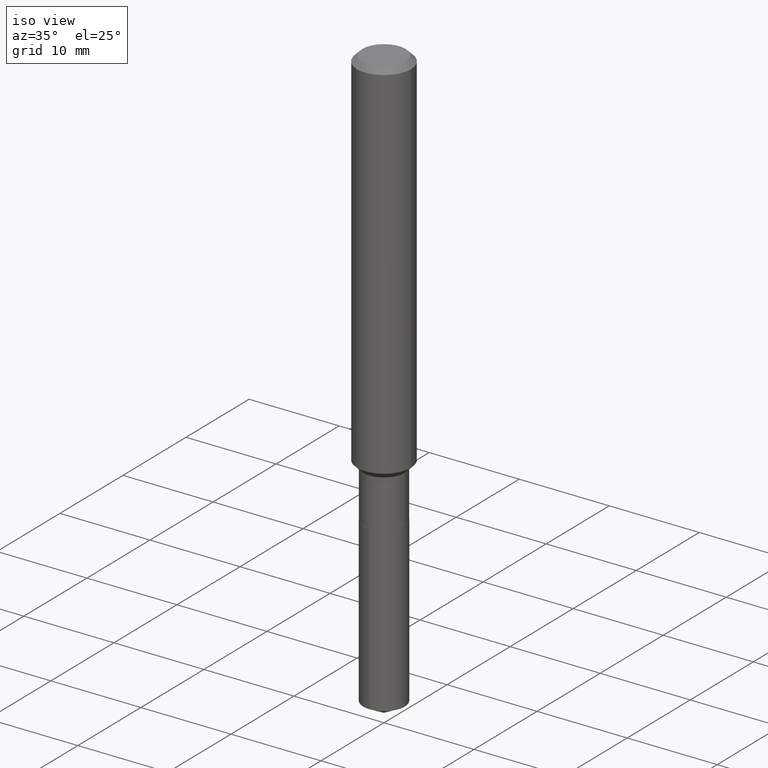
[diagram: clean part render]
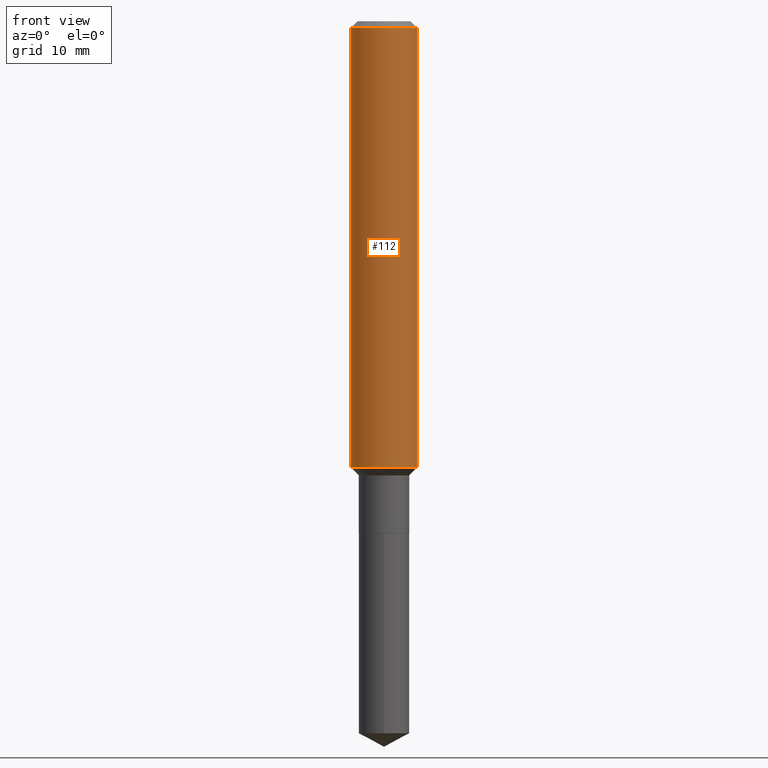
[diagram: tour spotlight — one face highlighted and labeled with its STEP entity id]
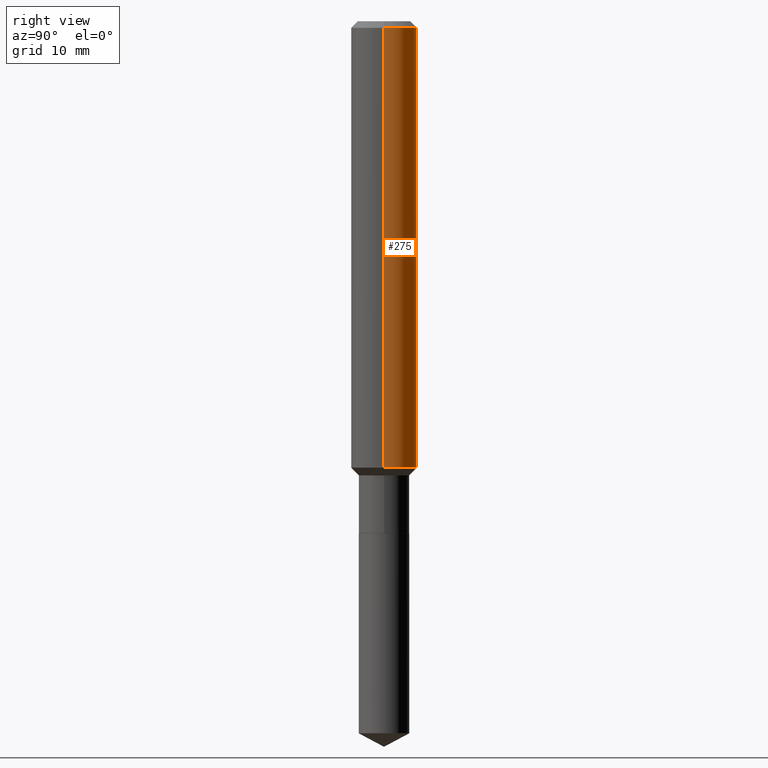
[diagram: tour spotlight — one face highlighted and labeled with its STEP entity id]
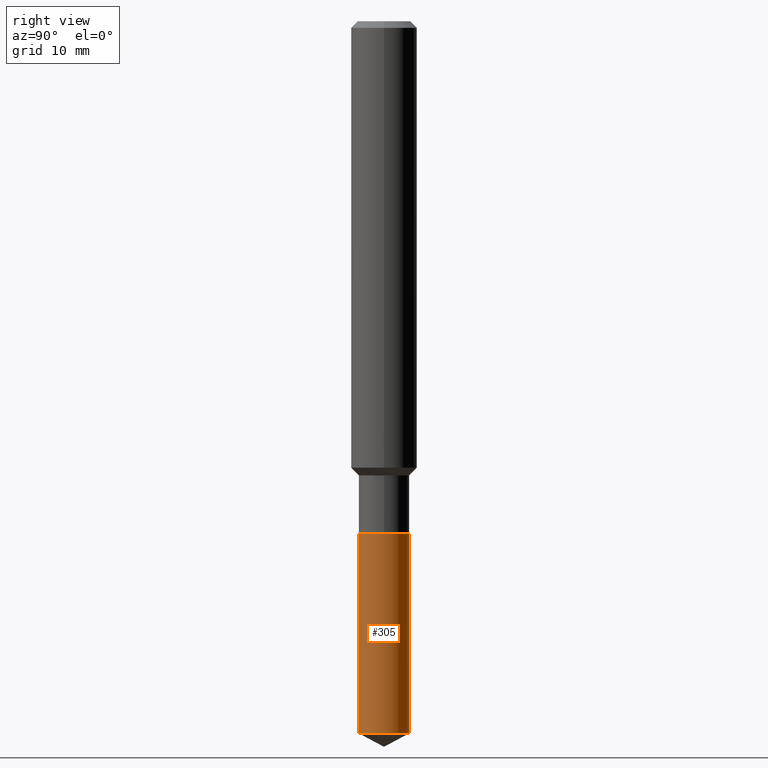
[diagram: tour spotlight — one face highlighted and labeled with its STEP entity id]
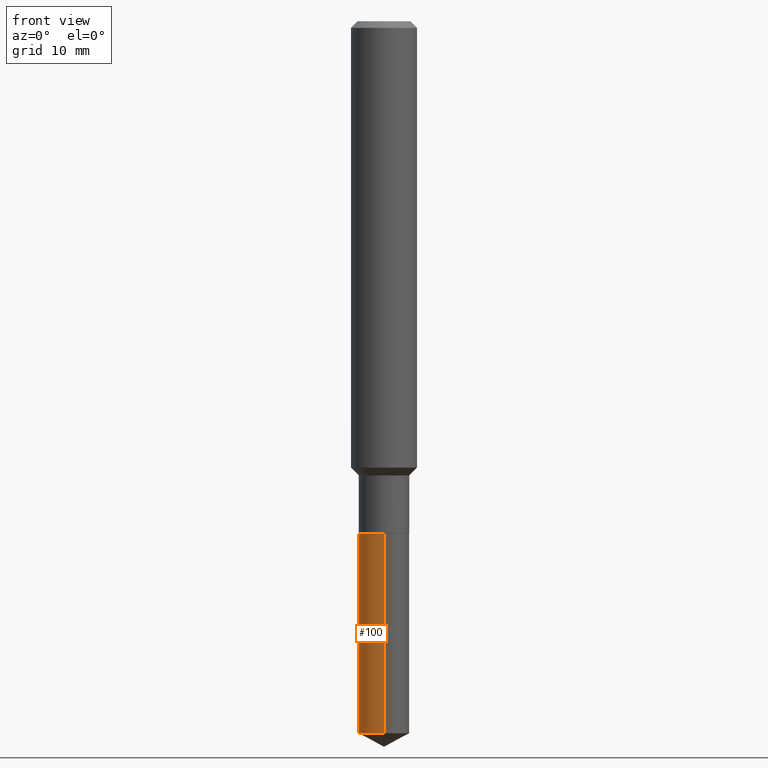
[diagram: tour spotlight — one face highlighted and labeled with its STEP entity id]
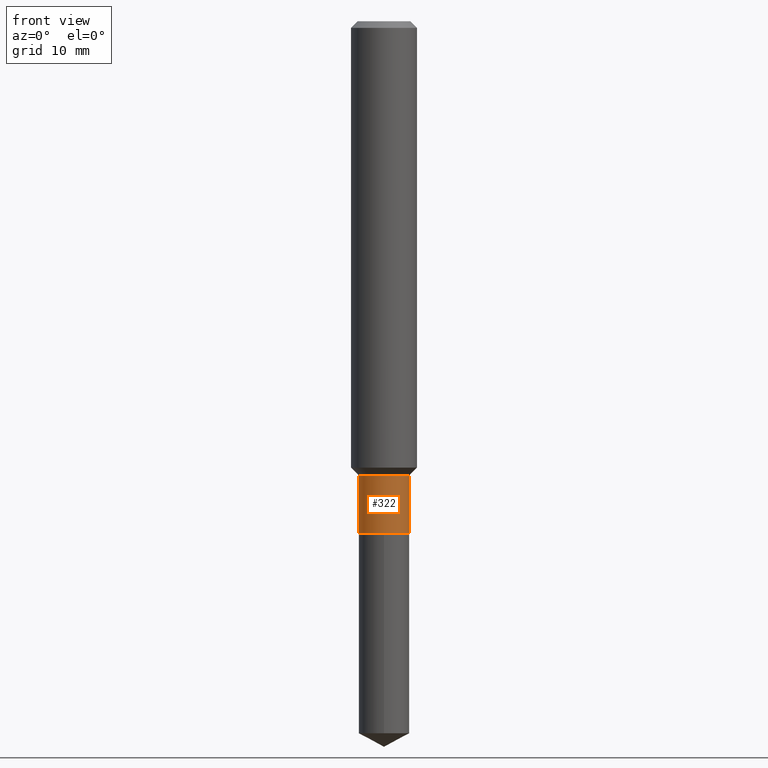
[diagram: tour spotlight — one face highlighted and labeled with its STEP entity id]
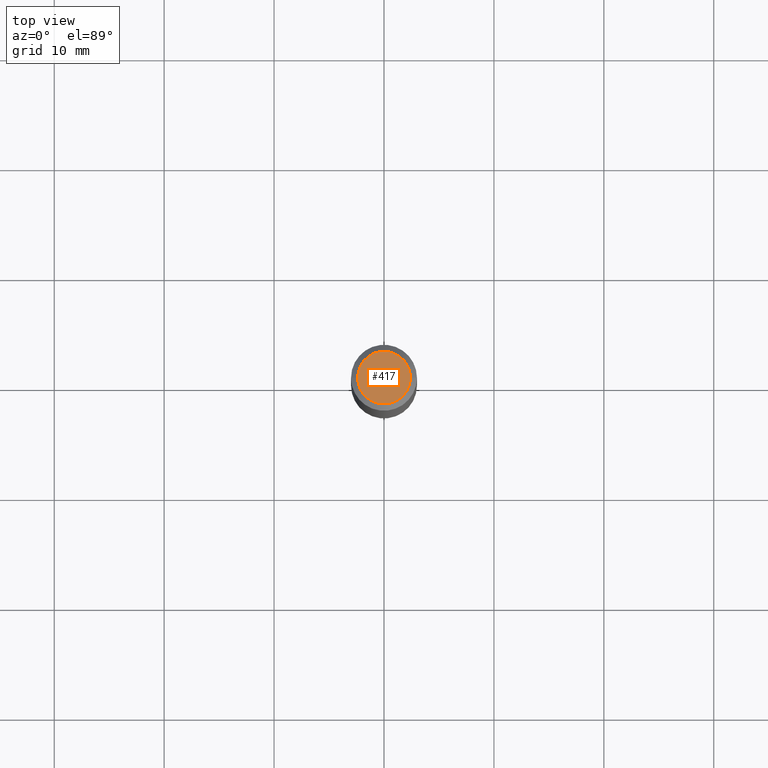
[diagram: tour spotlight — one face highlighted and labeled with its STEP entity id]
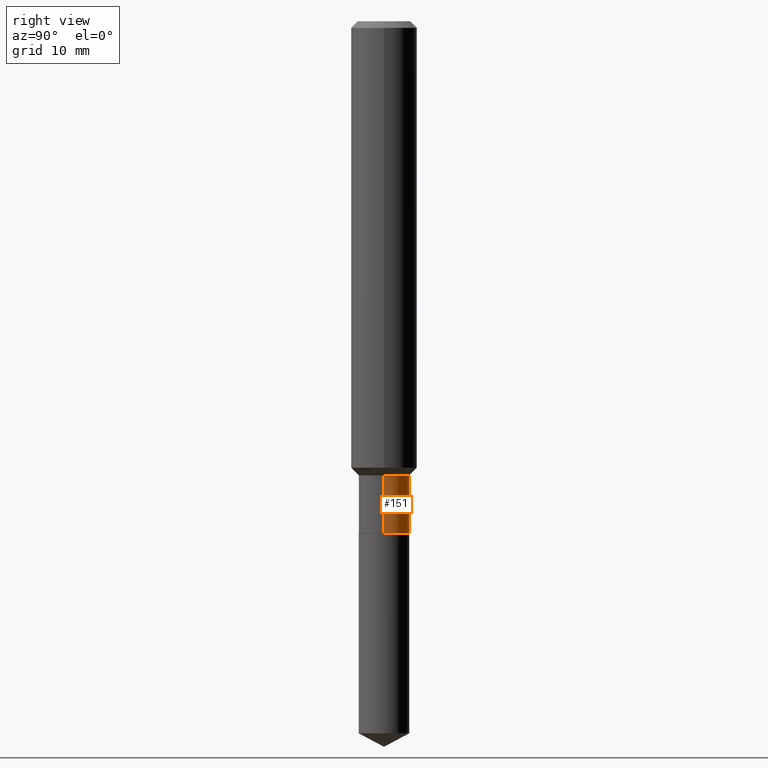
[diagram: tour spotlight — one face highlighted and labeled with its STEP entity id]
A machine part: a face-by-face anatomy tour. The part has 17 B-rep faces; the first image is the clean iso view, then the 7 largest visible faces are spotlighted one at a time (largest first), each with its STEP entity span.

Face 1 — front view, entity #112. In plain terms, the highlighted cylindrical surface (edge-blend (fillet) strip) has radius 2.9997 mm, axis along (-0, 0, 1).
Definition (entity closure, byte-faithful):
#6 = LINE ( 'NONE', #160, #416 ) ;
#32 = DIRECTION ( 'NONE',  ( -2.445468806185136877E-29, 3.491481338843145188E-15, 1.000000000000000000 ) ) ;
#49 = CARTESIAN_POINT ( 'NONE',  ( -0.1180999999999999966, -1.993086318916797028E-15, -0.02362000000000014088 ) ) ;
#70 = DIRECTION ( 'NONE',  ( 1.000000000000000000, -6.982962677686269077E-15, 0.000000000000000000 ) ) ;
#98 = DIRECTION ( 'NONE',  ( 1.000000000000000000, -6.982962677686266711E-15, 0.000000000000000000 ) ) ;
#101 = CYLINDRICAL_SURFACE ( 'NONE', #425, 0.1181000000000001077 ) ;
#102 = EDGE_CURVE ( 'NONE', #263, #270, #320, .T. ) ;
#109 = EDGE_CURVE ( 'NONE', #349, #270, #194, .T. ) ;
#112 = ADVANCED_FACE ( 'NONE', ( #255 ), #101, .T. ) ;
#129 = AXIS2_PLACEMENT_3D ( 'NONE', #479, #177, #98 ) ;
#134 = ORIENTED_EDGE ( 'NONE', *, *, #102, .T. ) ;
#160 = CARTESIAN_POINT ( 'NONE',  ( -0.1181000000000001077, 8.391509709326790846E-16, -5.809262341591049389E-30 ) ) ;
#164 = CARTESIAN_POINT ( 'NONE',  ( 0.1181000000000001909, -6.406693682710227199E-15, -1.598749999999999671 ) ) ;
#177 = DIRECTION ( 'NONE',  ( -2.445468806185136597E-29, 3.491481338843145583E-15, 1.000000000000000000 ) ) ;
#178 = CIRCLE ( 'NONE', #244, 0.1181000000000001909 ) ;
#184 = DIRECTION ( 'NONE',  ( -2.445468806185136597E-29, 3.491481338843145583E-15, 1.000000000000000000 ) ) ;
#194 = CIRCLE ( 'NONE', #129, 0.1180999999999999966 ) ;
#224 = CARTESIAN_POINT ( 'NONE',  ( 3.909693253888486103E-29, -5.582005790475478148E-15, -1.598749999999999671 ) ) ;
#238 = ORIENTED_EDGE ( 'NONE', *, *, #109, .F. ) ;
#244 = AXIS2_PLACEMENT_3D ( 'NONE', #224, #360, #70 ) ;
#255 = FACE_OUTER_BOUND ( 'NONE', #413, .T. ) ;
#263 = VERTEX_POINT ( 'NONE', #164 ) ;
#270 = VERTEX_POINT ( 'NONE', #345 ) ;
#288 = CARTESIAN_POINT ( 'NONE',  ( 0.1181000000000001077, -8.246878922347488542E-16, 5.758764772215005345E-30 ) ) ;
#295 = ORIENTED_EDGE ( 'NONE', *, *, #440, .F. ) ;
#302 = VECTOR ( 'NONE', #32, 39.37007874015748143 ) ;
#320 = LINE ( 'NONE', #288, #302 ) ;
#345 = CARTESIAN_POINT ( 'NONE',  ( 0.1180999999999999966, -9.071566814582237199E-16, -0.02362000000000014088 ) ) ;
#349 = VERTEX_POINT ( 'NONE', #49 ) ;
#360 = DIRECTION ( 'NONE',  ( -2.445468806185136597E-29, 3.491481338843145583E-15, 1.000000000000000000 ) ) ;
#362 = EDGE_CURVE ( 'NONE', #409, #263, #178, .T. ) ;
#389 = DIRECTION ( 'NONE',  ( 1.000000000000000000, -6.982962677686266711E-15, 4.876176775795935793E-29 ) ) ;
#409 = VERTEX_POINT ( 'NONE', #468 ) ;
#413 = EDGE_LOOP ( 'NONE', ( #295, #485, #134, #238 ) ) ;
#416 = VECTOR ( 'NONE', #455, 39.37007874015748143 ) ;
#425 = AXIS2_PLACEMENT_3D ( 'NONE', #434, #184, #389 ) ;
#434 = CARTESIAN_POINT ( 'NONE',  ( 0.000000000000000000, 0.000000000000000000, 0.000000000000000000 ) ) ;
#440 = EDGE_CURVE ( 'NONE', #409, #349, #6, .T. ) ;
#455 = DIRECTION ( 'NONE',  ( -2.445468806185136877E-29, 3.491481338843145188E-15, 1.000000000000000000 ) ) ;
#468 = CARTESIAN_POINT ( 'NONE',  ( -0.1181000000000001909, -4.742854819542799162E-15, -1.598749999999999671 ) ) ;
#479 = CARTESIAN_POINT ( 'NONE',  ( 5.776197320209327532E-31, -8.246878922347559293E-17, -0.02362000000000014088 ) ) ;
#485 = ORIENTED_EDGE ( 'NONE', *, *, #362, .T. ) ;

Face 2 — right view, entity #275. In plain terms, the highlighted cylindrical surface (edge-blend (fillet) strip) has radius 2.9997 mm, axis along (-0, 0, 1).
Definition (entity closure, byte-faithful):
#3 = AXIS2_PLACEMENT_3D ( 'NONE', #449, #405, #113 ) ;
#6 = LINE ( 'NONE', #160, #416 ) ;
#32 = DIRECTION ( 'NONE',  ( -2.445468806185136877E-29, 3.491481338843145188E-15, 1.000000000000000000 ) ) ;
#49 = CARTESIAN_POINT ( 'NONE',  ( -0.1180999999999999966, -1.993086318916797028E-15, -0.02362000000000014088 ) ) ;
#59 = AXIS2_PLACEMENT_3D ( 'NONE', #478, #353, #315 ) ;
#82 = DIRECTION ( 'NONE',  ( -2.445468806185136597E-29, 3.491481338843145583E-15, 1.000000000000000000 ) ) ;
#86 = ORIENTED_EDGE ( 'NONE', *, *, #440, .T. ) ;
#95 = ORIENTED_EDGE ( 'NONE', *, *, #226, .T. ) ;
#102 = EDGE_CURVE ( 'NONE', #263, #270, #320, .T. ) ;
#107 = DIRECTION ( 'NONE',  ( 1.000000000000000000, -6.982962677686269077E-15, 0.000000000000000000 ) ) ;
#113 = DIRECTION ( 'NONE',  ( 1.000000000000000000, -6.982962677686266711E-15, 0.000000000000000000 ) ) ;
#160 = CARTESIAN_POINT ( 'NONE',  ( -0.1181000000000001077, 8.391509709326790846E-16, -5.809262341591049389E-30 ) ) ;
#164 = CARTESIAN_POINT ( 'NONE',  ( 0.1181000000000001909, -6.406693682710227199E-15, -1.598749999999999671 ) ) ;
#182 = CYLINDRICAL_SURFACE ( 'NONE', #59, 0.1181000000000001077 ) ;
#195 = AXIS2_PLACEMENT_3D ( 'NONE', #299, #82, #107 ) ;
#212 = CIRCLE ( 'NONE', #195, 0.1181000000000001909 ) ;
#226 = EDGE_CURVE ( 'NONE', #263, #409, #212, .T. ) ;
#263 = VERTEX_POINT ( 'NONE', #164 ) ;
#266 = EDGE_LOOP ( 'NONE', ( #95, #86, #344, #419 ) ) ;
#270 = VERTEX_POINT ( 'NONE', #345 ) ;
#275 = ADVANCED_FACE ( 'NONE', ( #448 ), #182, .T. ) ;
#288 = CARTESIAN_POINT ( 'NONE',  ( 0.1181000000000001077, -8.246878922347488542E-16, 5.758764772215005345E-30 ) ) ;
#299 = CARTESIAN_POINT ( 'NONE',  ( 3.909693253888486103E-29, -5.582005790475478148E-15, -1.598749999999999671 ) ) ;
#301 = CIRCLE ( 'NONE', #3, 0.1180999999999999966 ) ;
#302 = VECTOR ( 'NONE', #32, 39.37007874015748143 ) ;
#315 = DIRECTION ( 'NONE',  ( 1.000000000000000000, -6.982962677686266711E-15, 4.876176775795935793E-29 ) ) ;
#320 = LINE ( 'NONE', #288, #302 ) ;
#344 = ORIENTED_EDGE ( 'NONE', *, *, #384, .F. ) ;
#345 = CARTESIAN_POINT ( 'NONE',  ( 0.1180999999999999966, -9.071566814582237199E-16, -0.02362000000000014088 ) ) ;
#349 = VERTEX_POINT ( 'NONE', #49 ) ;
#353 = DIRECTION ( 'NONE',  ( -2.445468806185136597E-29, 3.491481338843145583E-15, 1.000000000000000000 ) ) ;
#384 = EDGE_CURVE ( 'NONE', #270, #349, #301, .T. ) ;
#405 = DIRECTION ( 'NONE',  ( -2.445468806185136597E-29, 3.491481338843145583E-15, 1.000000000000000000 ) ) ;
#409 = VERTEX_POINT ( 'NONE', #468 ) ;
#416 = VECTOR ( 'NONE', #455, 39.37007874015748143 ) ;
#419 = ORIENTED_EDGE ( 'NONE', *, *, #102, .F. ) ;
#440 = EDGE_CURVE ( 'NONE', #409, #349, #6, .T. ) ;
#448 = FACE_OUTER_BOUND ( 'NONE', #266, .T. ) ;
#449 = CARTESIAN_POINT ( 'NONE',  ( 5.776197320209327532E-31, -8.246878922347559293E-17, -0.02362000000000014088 ) ) ;
#455 = DIRECTION ( 'NONE',  ( -2.445468806185136877E-29, 3.491481338843145188E-15, 1.000000000000000000 ) ) ;
#468 = CARTESIAN_POINT ( 'NONE',  ( -0.1181000000000001909, -4.742854819542799162E-15, -1.598749999999999671 ) ) ;
#478 = CARTESIAN_POINT ( 'NONE',  ( 0.000000000000000000, 0.000000000000000000, 0.000000000000000000 ) ) ;

Face 3 — right view, entity #305. In plain terms, the highlighted cylindrical surface (edge-blend (fillet) strip) has radius 2.3 mm, axis along (-0, 0, 1).
Definition (entity closure, byte-faithful):
#8 = DIRECTION ( 'NONE',  ( -6.982962677686266711E-15, -1.000000000000000000, 6.033899489043098888E-15 ) ) ;
#13 = LINE ( 'NONE', #158, #85 ) ;
#24 = AXIS2_PLACEMENT_3D ( 'NONE', #105, #196, #8 ) ;
#41 = EDGE_LOOP ( 'NONE', ( #173, #444, #307, #214 ) ) ;
#57 = CYLINDRICAL_SURFACE ( 'NONE', #75, 0.09055000000000000548 ) ;
#69 = DIRECTION ( 'NONE',  ( -2.445542674016749564E-29, 3.491375555903980518E-15, 1.000000000000000000 ) ) ;
#73 = VECTOR ( 'NONE', #69, 39.37007874015748143 ) ;
#75 = AXIS2_PLACEMENT_3D ( 'NONE', #317, #284, #296 ) ;
#79 = DIRECTION ( 'NONE',  ( -2.445542674016749564E-29, 3.491375555903980124E-15, 1.000000000000000000 ) ) ;
#81 = EDGE_CURVE ( 'NONE', #127, #122, #145, .T. ) ;
#85 = VECTOR ( 'NONE', #309, 39.37007874015748143 ) ;
#103 = AXIS2_PLACEMENT_3D ( 'NONE', #242, #79, #404 ) ;
#105 = CARTESIAN_POINT ( 'NONE',  ( 6.236618761805847335E-29, -8.904087537190013897E-15, -2.550253710963053422 ) ) ;
#122 = VERTEX_POINT ( 'NONE', #481 ) ;
#127 = VERTEX_POINT ( 'NONE', #138 ) ;
#138 = CARTESIAN_POINT ( 'NONE',  ( -6.323072704644292482E-16, -0.09055000000000891502, -2.550253710963052978 ) ) ;
#145 = LINE ( 'NONE', #256, #73 ) ;
#158 = CARTESIAN_POINT ( 'NONE',  ( 6.433964472308155251E-16, 0.09054999999999360782, -1.834600000000000231 ) ) ;
#173 = ORIENTED_EDGE ( 'NONE', *, *, #371, .T. ) ;
#196 = DIRECTION ( 'NONE',  ( -2.445542674016749564E-29, 3.491375555903980124E-15, 1.000000000000000000 ) ) ;
#214 = ORIENTED_EDGE ( 'NONE', *, *, #81, .F. ) ;
#215 = EDGE_CURVE ( 'NONE', #122, #406, #400, .T. ) ;
#239 = CIRCLE ( 'NONE', #24, 0.09055000000000000548 ) ;
#242 = CARTESIAN_POINT ( 'NONE',  ( 4.486457071827251481E-29, -6.405471664241634119E-15, -1.834599999999999786 ) ) ;
#256 = CARTESIAN_POINT ( 'NONE',  ( -6.323072704644466031E-16, -0.09055000000000641702, -1.834599999999999564 ) ) ;
#284 = DIRECTION ( 'NONE',  ( -2.445542674016749564E-29, 3.491375555903980124E-15, 1.000000000000000000 ) ) ;
#296 = DIRECTION ( 'NONE',  ( -6.982962677686266711E-15, -1.000000000000000000, 3.016949744521549444E-15 ) ) ;
#305 = ADVANCED_FACE ( 'NONE', ( #318 ), #57, .T. ) ;
#307 = ORIENTED_EDGE ( 'NONE', *, *, #215, .F. ) ;
#309 = DIRECTION ( 'NONE',  ( -2.445542674016749564E-29, 3.491375555903980518E-15, 1.000000000000000000 ) ) ;
#317 = CARTESIAN_POINT ( 'NONE',  ( 4.486457071827251481E-29, -6.405471664241634119E-15, -1.834599999999999786 ) ) ;
#318 = FACE_OUTER_BOUND ( 'NONE', #41, .T. ) ;
#346 = CARTESIAN_POINT ( 'NONE',  ( 6.433964472308331759E-16, 0.09054999999999360782, -1.834600000000000231 ) ) ;
#370 = VERTEX_POINT ( 'NONE', #437 ) ;
#371 = EDGE_CURVE ( 'NONE', #127, #370, #239, .T. ) ;
#400 = CIRCLE ( 'NONE', #103, 0.09055000000000000548 ) ;
#404 = DIRECTION ( 'NONE',  ( -6.982962677686266711E-15, -1.000000000000000000, 3.016949744521549444E-15 ) ) ;
#406 = VERTEX_POINT ( 'NONE', #346 ) ;
#437 = CARTESIAN_POINT ( 'NONE',  ( 6.433964472308332745E-16, 0.09054999999999112370, -2.550253710963054310 ) ) ;
#444 = ORIENTED_EDGE ( 'NONE', *, *, #480, .T. ) ;
#480 = EDGE_CURVE ( 'NONE', #370, #406, #13, .T. ) ;
#481 = CARTESIAN_POINT ( 'NONE',  ( -6.323072704644466031E-16, -0.09055000000000641702, -1.834599999999999564 ) ) ;

Face 4 — front view, entity #100. In plain terms, the highlighted cylindrical surface (edge-blend (fillet) strip) has radius 2.3 mm, axis along (-0, 0, 1).
Definition (entity closure, byte-faithful):
#13 = LINE ( 'NONE', #158, #85 ) ;
#22 = EDGE_CURVE ( 'NONE', #370, #127, #149, .T. ) ;
#23 = FACE_OUTER_BOUND ( 'NONE', #193, .T. ) ;
#25 = DIRECTION ( 'NONE',  ( -6.982962677686266711E-15, -1.000000000000000000, 3.016949744521549444E-15 ) ) ;
#68 = DIRECTION ( 'NONE',  ( -2.445542674016749564E-29, 3.491375555903980124E-15, 1.000000000000000000 ) ) ;
#69 = DIRECTION ( 'NONE',  ( -2.445542674016749564E-29, 3.491375555903980518E-15, 1.000000000000000000 ) ) ;
#73 = VECTOR ( 'NONE', #69, 39.37007874015748143 ) ;
#81 = EDGE_CURVE ( 'NONE', #127, #122, #145, .T. ) ;
#85 = VECTOR ( 'NONE', #309, 39.37007874015748143 ) ;
#97 = AXIS2_PLACEMENT_3D ( 'NONE', #355, #396, #487 ) ;
#100 = ADVANCED_FACE ( 'NONE', ( #23 ), #225, .T. ) ;
#122 = VERTEX_POINT ( 'NONE', #481 ) ;
#127 = VERTEX_POINT ( 'NONE', #138 ) ;
#133 = AXIS2_PLACEMENT_3D ( 'NONE', #361, #183, #359 ) ;
#138 = CARTESIAN_POINT ( 'NONE',  ( -6.323072704644292482E-16, -0.09055000000000891502, -2.550253710963052978 ) ) ;
#140 = EDGE_CURVE ( 'NONE', #406, #122, #291, .T. ) ;
#145 = LINE ( 'NONE', #256, #73 ) ;
#149 = CIRCLE ( 'NONE', #97, 0.09055000000000000548 ) ;
#153 = ORIENTED_EDGE ( 'NONE', *, *, #22, .T. ) ;
#158 = CARTESIAN_POINT ( 'NONE',  ( 6.433964472308155251E-16, 0.09054999999999360782, -1.834600000000000231 ) ) ;
#183 = DIRECTION ( 'NONE',  ( -2.445542674016749564E-29, 3.491375555903980124E-15, 1.000000000000000000 ) ) ;
#193 = EDGE_LOOP ( 'NONE', ( #447, #153, #228, #311 ) ) ;
#225 = CYLINDRICAL_SURFACE ( 'NONE', #133, 0.09055000000000000548 ) ;
#228 = ORIENTED_EDGE ( 'NONE', *, *, #81, .T. ) ;
#256 = CARTESIAN_POINT ( 'NONE',  ( -6.323072704644466031E-16, -0.09055000000000641702, -1.834599999999999564 ) ) ;
#260 = AXIS2_PLACEMENT_3D ( 'NONE', #357, #68, #25 ) ;
#291 = CIRCLE ( 'NONE', #260, 0.09055000000000000548 ) ;
#309 = DIRECTION ( 'NONE',  ( -2.445542674016749564E-29, 3.491375555903980518E-15, 1.000000000000000000 ) ) ;
#311 = ORIENTED_EDGE ( 'NONE', *, *, #140, .F. ) ;
#346 = CARTESIAN_POINT ( 'NONE',  ( 6.433964472308331759E-16, 0.09054999999999360782, -1.834600000000000231 ) ) ;
#355 = CARTESIAN_POINT ( 'NONE',  ( 6.236618761805847335E-29, -8.904087537190013897E-15, -2.550253710963053422 ) ) ;
#357 = CARTESIAN_POINT ( 'NONE',  ( 4.486457071827251481E-29, -6.405471664241634119E-15, -1.834599999999999786 ) ) ;
#359 = DIRECTION ( 'NONE',  ( -6.982962677686266711E-15, -1.000000000000000000, 3.016949744521549444E-15 ) ) ;
#361 = CARTESIAN_POINT ( 'NONE',  ( 4.486457071827251481E-29, -6.405471664241634119E-15, -1.834599999999999786 ) ) ;
#370 = VERTEX_POINT ( 'NONE', #437 ) ;
#396 = DIRECTION ( 'NONE',  ( -2.445542674016749564E-29, 3.491375555903980124E-15, 1.000000000000000000 ) ) ;
#406 = VERTEX_POINT ( 'NONE', #346 ) ;
#437 = CARTESIAN_POINT ( 'NONE',  ( 6.433964472308332745E-16, 0.09054999999999112370, -2.550253710963054310 ) ) ;
#447 = ORIENTED_EDGE ( 'NONE', *, *, #480, .F. ) ;
#480 = EDGE_CURVE ( 'NONE', #370, #406, #13, .T. ) ;
#481 = CARTESIAN_POINT ( 'NONE',  ( -6.323072704644466031E-16, -0.09055000000000641702, -1.834599999999999564 ) ) ;
#487 = DIRECTION ( 'NONE',  ( -6.982962677686266711E-15, -1.000000000000000000, 6.033899489043098888E-15 ) ) ;

Face 5 — front view, entity #322. In plain terms, the highlighted cylindrical surface (edge-blend (fillet) strip) has radius 2.3 mm, axis along (-0, 0, 1).
Definition (entity closure, byte-faithful):
#14 = AXIS2_PLACEMENT_3D ( 'NONE', #217, #163, #118 ) ;
#18 = LINE ( 'NONE', #313, #117 ) ;
#72 = VERTEX_POINT ( 'NONE', #428 ) ;
#110 = ORIENTED_EDGE ( 'NONE', *, *, #486, .T. ) ;
#117 = VECTOR ( 'NONE', #422, 39.37007874015748143 ) ;
#118 = DIRECTION ( 'NONE',  ( 1.000000000000000000, -6.982962677686267499E-15, 0.000000000000000000 ) ) ;
#120 = VERTEX_POINT ( 'NONE', #290 ) ;
#132 = VECTOR ( 'NONE', #412, 39.37007874015748143 ) ;
#147 = CYLINDRICAL_SURFACE ( 'NONE', #310, 0.09055000000000000548 ) ;
#163 = DIRECTION ( 'NONE',  ( -2.445468806185136597E-29, 3.491481338843145583E-15, 1.000000000000000000 ) ) ;
#200 = ORIENTED_EDGE ( 'NONE', *, *, #273, .F. ) ;
#217 = CARTESIAN_POINT ( 'NONE',  ( 3.977065919498887245E-29, -5.678196101360606544E-15, -1.626299999999999857 ) ) ;
#220 = CIRCLE ( 'NONE', #267, 0.09055000000000000548 ) ;
#257 = CARTESIAN_POINT ( 'NONE',  ( 0.000000000000000000, 0.000000000000000000, 0.000000000000000000 ) ) ;
#261 = DIRECTION ( 'NONE',  ( -2.445468806185136597E-29, 3.491481338843145583E-15, 1.000000000000000000 ) ) ;
#267 = AXIS2_PLACEMENT_3D ( 'NONE', #403, #261, #368 ) ;
#273 = EDGE_CURVE ( 'NONE', #72, #458, #18, .T. ) ;
#290 = CARTESIAN_POINT ( 'NONE',  ( 0.09055000000000000548, -7.036033194036704874E-15, -1.834100000000000064 ) ) ;
#298 = DIRECTION ( 'NONE',  ( -2.445468806185136597E-29, 3.491481338843145583E-15, 1.000000000000000000 ) ) ;
#300 = ORIENTED_EDGE ( 'NONE', *, *, #336, .T. ) ;
#306 = CARTESIAN_POINT ( 'NONE',  ( -0.09054999999999999161, -5.397564565235639118E-15, -1.626299999999999857 ) ) ;
#310 = AXIS2_PLACEMENT_3D ( 'NONE', #257, #298, #331 ) ;
#313 = CARTESIAN_POINT ( 'NONE',  ( -0.09055000000000000548, 6.433964472307707573E-16, -4.454095724225817219E-30 ) ) ;
#322 = ADVANCED_FACE ( 'NONE', ( #443 ), #147, .T. ) ;
#329 = CARTESIAN_POINT ( 'NONE',  ( 0.09054999999999999161, -6.310503371825098014E-15, -1.626299999999999857 ) ) ;
#331 = DIRECTION ( 'NONE',  ( 1.000000000000000000, -6.982962677686266711E-15, 4.876176775795936353E-29 ) ) ;
#336 = EDGE_CURVE ( 'NONE', #72, #120, #220, .T. ) ;
#350 = EDGE_CURVE ( 'NONE', #458, #401, #381, .T. ) ;
#368 = DIRECTION ( 'NONE',  ( 1.000000000000000000, -6.982962677686266711E-15, 0.000000000000000000 ) ) ;
#381 = CIRCLE ( 'NONE', #14, 0.09054999999999999161 ) ;
#399 = EDGE_LOOP ( 'NONE', ( #200, #300, #110, #454 ) ) ;
#401 = VERTEX_POINT ( 'NONE', #329 ) ;
#403 = CARTESIAN_POINT ( 'NONE',  ( 4.485234337424158680E-29, -6.403725923572213404E-15, -1.834100000000000064 ) ) ;
#412 = DIRECTION ( 'NONE',  ( -2.445468806185136877E-29, 3.491481338843145188E-15, 1.000000000000000000 ) ) ;
#422 = DIRECTION ( 'NONE',  ( -2.445468806185136877E-29, 3.491481338843145188E-15, 1.000000000000000000 ) ) ;
#428 = CARTESIAN_POINT ( 'NONE',  ( -0.09055000000000000548, -5.397564565235639118E-15, -1.834100000000000064 ) ) ;
#443 = FACE_OUTER_BOUND ( 'NONE', #399, .T. ) ;
#445 = CARTESIAN_POINT ( 'NONE',  ( 0.09055000000000000548, -6.323072704644914696E-16, 4.415378070483220808E-30 ) ) ;
#454 = ORIENTED_EDGE ( 'NONE', *, *, #350, .F. ) ;
#456 = LINE ( 'NONE', #445, #132 ) ;
#458 = VERTEX_POINT ( 'NONE', #306 ) ;
#486 = EDGE_CURVE ( 'NONE', #120, #401, #456, .T. ) ;

Face 6 — top view, entity #417. In plain terms, the highlighted planar face has unit normal (0, -0, -1).
Definition (entity closure, byte-faithful):
#28 = ORIENTED_EDGE ( 'NONE', *, *, #304, .T. ) ;
#29 = DIRECTION ( 'NONE',  ( 1.000000000000000000, -6.982962677686267499E-15, 4.875432709231658792E-29 ) ) ;
#39 = VERTEX_POINT ( 'NONE', #143 ) ;
#43 = AXIS2_PLACEMENT_3D ( 'NONE', #365, #490, #29 ) ;
#54 = CIRCLE ( 'NONE', #150, 0.09447999999999998066 ) ;
#60 = CARTESIAN_POINT ( 'NONE',  ( 6.603013411620882309E-46, -9.427353171913646324E-32, -2.700101262760083747E-17 ) ) ;
#96 = CIRCLE ( 'NONE', #43, 0.09447999999999998066 ) ;
#143 = CARTESIAN_POINT ( 'NONE',  ( 0.09447999999999998066, -7.704367267948738690E-16, -2.700101262759583929E-17 ) ) ;
#150 = AXIS2_PLACEMENT_3D ( 'NONE', #60, #464, #174 ) ;
#165 = PLANE ( 'NONE',  #292 ) ;
#166 = ORIENTED_EDGE ( 'NONE', *, *, #327, .T. ) ;
#174 = DIRECTION ( 'NONE',  ( 1.000000000000000000, -6.982962677686267499E-15, 4.875432709231658792E-29 ) ) ;
#204 = CARTESIAN_POINT ( 'NONE',  ( 3.301506705810441154E-46, -4.713676585956823162E-32, -1.350050631380041873E-17 ) ) ;
#292 = AXIS2_PLACEMENT_3D ( 'NONE', #204, #459, #308 ) ;
#304 = EDGE_CURVE ( 'NONE', #442, #39, #54, .T. ) ;
#308 = DIRECTION ( 'NONE',  ( -1.000000000000000000, 6.982962677686265922E-15, -4.876176775795935793E-29 ) ) ;
#327 = EDGE_CURVE ( 'NONE', #39, #442, #96, .T. ) ;
#365 = CARTESIAN_POINT ( 'NONE',  ( 6.603013411620882309E-46, -9.427353171913646324E-32, -2.700101262760083747E-17 ) ) ;
#379 = CARTESIAN_POINT ( 'NONE',  ( -0.09447999999999998066, 7.009847083995354710E-16, -2.700101262760559836E-17 ) ) ;
#382 = FACE_OUTER_BOUND ( 'NONE', #385, .T. ) ;
#385 = EDGE_LOOP ( 'NONE', ( #28, #166 ) ) ;
#417 = ADVANCED_FACE ( 'NONE', ( #382 ), #165, .F. ) ;
#442 = VERTEX_POINT ( 'NONE', #379 ) ;
#459 = DIRECTION ( 'NONE',  ( 2.438088387897960049E-29, -3.491481338843145188E-15, -1.000000000000000000 ) ) ;
#464 = DIRECTION ( 'NONE',  ( -2.445468806185136597E-29, 3.491481338843145583E-15, 1.000000000000000000 ) ) ;
#490 = DIRECTION ( 'NONE',  ( -2.445468806185136597E-29, 3.491481338843145583E-15, 1.000000000000000000 ) ) ;

Face 7 — right view, entity #151. In plain terms, the highlighted cylindrical surface (edge-blend (fillet) strip) has radius 2.3 mm, axis along (-0, 0, 1).
Definition (entity closure, byte-faithful):
#7 = DIRECTION ( 'NONE',  ( 1.000000000000000000, -6.982962677686267499E-15, 0.000000000000000000 ) ) ;
#18 = LINE ( 'NONE', #313, #117 ) ;
#58 = EDGE_LOOP ( 'NONE', ( #186, #372, #245, #77 ) ) ;
#71 = CARTESIAN_POINT ( 'NONE',  ( 0.000000000000000000, 0.000000000000000000, 0.000000000000000000 ) ) ;
#72 = VERTEX_POINT ( 'NONE', #428 ) ;
#77 = ORIENTED_EDGE ( 'NONE', *, *, #486, .F. ) ;
#88 = CARTESIAN_POINT ( 'NONE',  ( 3.977065919498887245E-29, -5.678196101360606544E-15, -1.626299999999999857 ) ) ;
#104 = DIRECTION ( 'NONE',  ( -2.445468806185136597E-29, 3.491481338843145583E-15, 1.000000000000000000 ) ) ;
#117 = VECTOR ( 'NONE', #422, 39.37007874015748143 ) ;
#120 = VERTEX_POINT ( 'NONE', #290 ) ;
#123 = EDGE_CURVE ( 'NONE', #120, #72, #347, .T. ) ;
#132 = VECTOR ( 'NONE', #412, 39.37007874015748143 ) ;
#141 = AXIS2_PLACEMENT_3D ( 'NONE', #88, #335, #7 ) ;
#151 = ADVANCED_FACE ( 'NONE', ( #398 ), #223, .T. ) ;
#186 = ORIENTED_EDGE ( 'NONE', *, *, #123, .T. ) ;
#192 = EDGE_CURVE ( 'NONE', #401, #458, #252, .T. ) ;
#223 = CYLINDRICAL_SURFACE ( 'NONE', #446, 0.09055000000000000548 ) ;
#245 = ORIENTED_EDGE ( 'NONE', *, *, #192, .F. ) ;
#252 = CIRCLE ( 'NONE', #141, 0.09054999999999999161 ) ;
#273 = EDGE_CURVE ( 'NONE', #72, #458, #18, .T. ) ;
#282 = AXIS2_PLACEMENT_3D ( 'NONE', #394, #473, #285 ) ;
#285 = DIRECTION ( 'NONE',  ( 1.000000000000000000, -6.982962677686266711E-15, 0.000000000000000000 ) ) ;
#290 = CARTESIAN_POINT ( 'NONE',  ( 0.09055000000000000548, -7.036033194036704874E-15, -1.834100000000000064 ) ) ;
#306 = CARTESIAN_POINT ( 'NONE',  ( -0.09054999999999999161, -5.397564565235639118E-15, -1.626299999999999857 ) ) ;
#313 = CARTESIAN_POINT ( 'NONE',  ( -0.09055000000000000548, 6.433964472307707573E-16, -4.454095724225817219E-30 ) ) ;
#329 = CARTESIAN_POINT ( 'NONE',  ( 0.09054999999999999161, -6.310503371825098014E-15, -1.626299999999999857 ) ) ;
#335 = DIRECTION ( 'NONE',  ( -2.445468806185136597E-29, 3.491481338843145583E-15, 1.000000000000000000 ) ) ;
#347 = CIRCLE ( 'NONE', #282, 0.09055000000000000548 ) ;
#372 = ORIENTED_EDGE ( 'NONE', *, *, #273, .T. ) ;
#394 = CARTESIAN_POINT ( 'NONE',  ( 4.485234337424158680E-29, -6.403725923572213404E-15, -1.834100000000000064 ) ) ;
#398 = FACE_OUTER_BOUND ( 'NONE', #58, .T. ) ;
#401 = VERTEX_POINT ( 'NONE', #329 ) ;
#408 = DIRECTION ( 'NONE',  ( 1.000000000000000000, -6.982962677686266711E-15, 4.876176775795936353E-29 ) ) ;
#412 = DIRECTION ( 'NONE',  ( -2.445468806185136877E-29, 3.491481338843145188E-15, 1.000000000000000000 ) ) ;
#422 = DIRECTION ( 'NONE',  ( -2.445468806185136877E-29, 3.491481338843145188E-15, 1.000000000000000000 ) ) ;
#428 = CARTESIAN_POINT ( 'NONE',  ( -0.09055000000000000548, -5.397564565235639118E-15, -1.834100000000000064 ) ) ;
#445 = CARTESIAN_POINT ( 'NONE',  ( 0.09055000000000000548, -6.323072704644914696E-16, 4.415378070483220808E-30 ) ) ;
#446 = AXIS2_PLACEMENT_3D ( 'NONE', #71, #104, #408 ) ;
#456 = LINE ( 'NONE', #445, #132 ) ;
#458 = VERTEX_POINT ( 'NONE', #306 ) ;
#473 = DIRECTION ( 'NONE',  ( -2.445468806185136597E-29, 3.491481338843145583E-15, 1.000000000000000000 ) ) ;
#486 = EDGE_CURVE ( 'NONE', #120, #401, #456, .T. ) ;